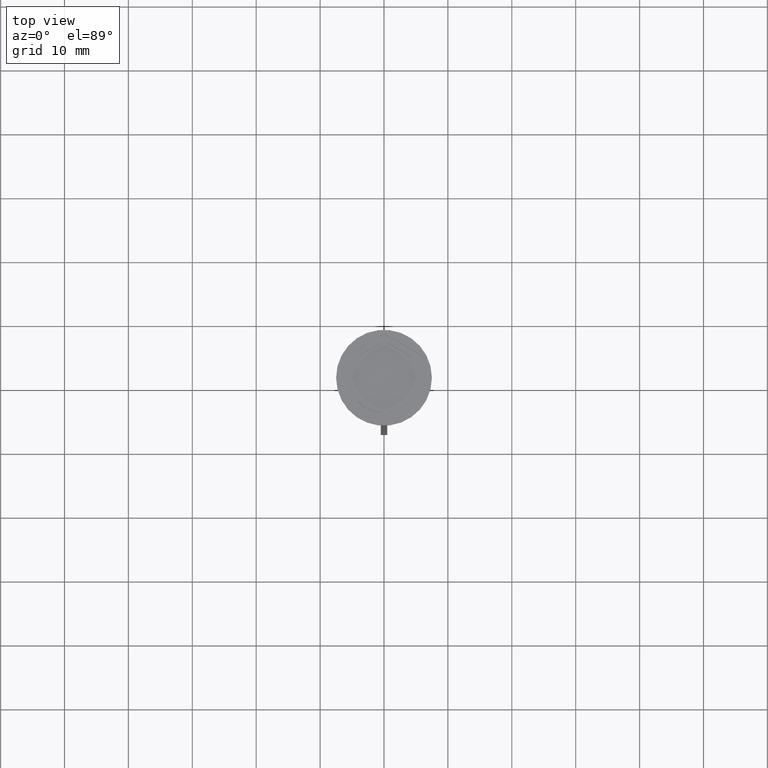
[diagram: clean part render]
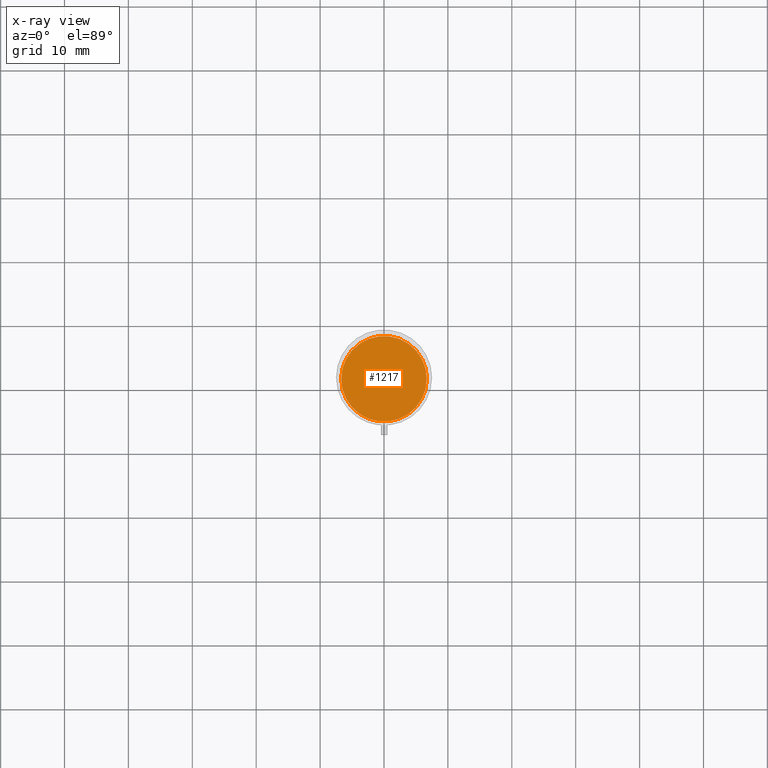
[diagram: x-ray — body ghosted, one internal face saturated and labeled with its STEP entity id]
A machine part, top view, then the same camera in x-ray: the body is ghosted and one INTERNAL B-rep face — a face not visible from any outside direction — is saturated and labeled: STEP entity #1217.
In plain terms, the highlighted planar face has unit normal (0, 0, -1).
Its self-contained STEP definition (entity closure, byte-faithful):
#1 = PLANE ( 'NONE',  #993 ) ;
#140 = ORIENTED_EDGE ( 'NONE', *, *, #2423, .T. ) ;
#187 = FACE_OUTER_BOUND ( 'NONE', #804, .T. ) ;
#374 = VERTEX_POINT ( 'NONE', #1720 ) ;
#381 = CARTESIAN_POINT ( 'NONE',  ( 0.000000000000000000, 0.000000000000000000, -10.50000000000000178 ) ) ;
#651 = CARTESIAN_POINT ( 'NONE',  ( 0.000000000000000000, 0.000000000000000000, -10.50000000000000178 ) ) ;
#695 = VERTEX_POINT ( 'NONE', #1516 ) ;
#697 = CARTESIAN_POINT ( 'NONE',  ( 0.000000000000000000, 0.000000000000000000, -10.50000000000000178 ) ) ;
#804 = EDGE_LOOP ( 'NONE', ( #140, #1347 ) ) ;
#832 = DIRECTION ( 'NONE',  ( -0.000000000000000000, -0.000000000000000000, 1.000000000000000000 ) ) ;
#993 = AXIS2_PLACEMENT_3D ( 'NONE', #381, #1787, #2154 ) ;
#1003 = CIRCLE ( 'NONE', #2404, 6.700000000000001066 ) ;
#1056 = DIRECTION ( 'NONE',  ( -1.000000000000000000, 0.000000000000000000, 0.000000000000000000 ) ) ;
#1217 = ADVANCED_FACE ( 'NONE', ( #187 ), #1, .F. ) ;
#1233 = DIRECTION ( 'NONE',  ( -1.000000000000000000, 0.000000000000000000, 0.000000000000000000 ) ) ;
#1347 = ORIENTED_EDGE ( 'NONE', *, *, #1428, .T. ) ;
#1428 = EDGE_CURVE ( 'NONE', #374, #695, #1973, .T. ) ;
#1475 = DIRECTION ( 'NONE',  ( -0.000000000000000000, -0.000000000000000000, 1.000000000000000000 ) ) ;
#1499 = AXIS2_PLACEMENT_3D ( 'NONE', #651, #832, #1233 ) ;
#1516 = CARTESIAN_POINT ( 'NONE',  ( -6.700000000000001066, 0.000000000000000000, -10.50000000000000178 ) ) ;
#1720 = CARTESIAN_POINT ( 'NONE',  ( 6.700000000000001066, 8.388830574159370862E-16, -10.50000000000000178 ) ) ;
#1787 = DIRECTION ( 'NONE',  ( 0.000000000000000000, 0.000000000000000000, -1.000000000000000000 ) ) ;
#1973 = CIRCLE ( 'NONE', #1499, 6.700000000000001066 ) ;
#2154 = DIRECTION ( 'NONE',  ( -1.000000000000000000, 0.000000000000000000, -0.000000000000000000 ) ) ;
#2404 = AXIS2_PLACEMENT_3D ( 'NONE', #697, #1475, #1056 ) ;
#2423 = EDGE_CURVE ( 'NONE', #695, #374, #1003, .T. ) ;